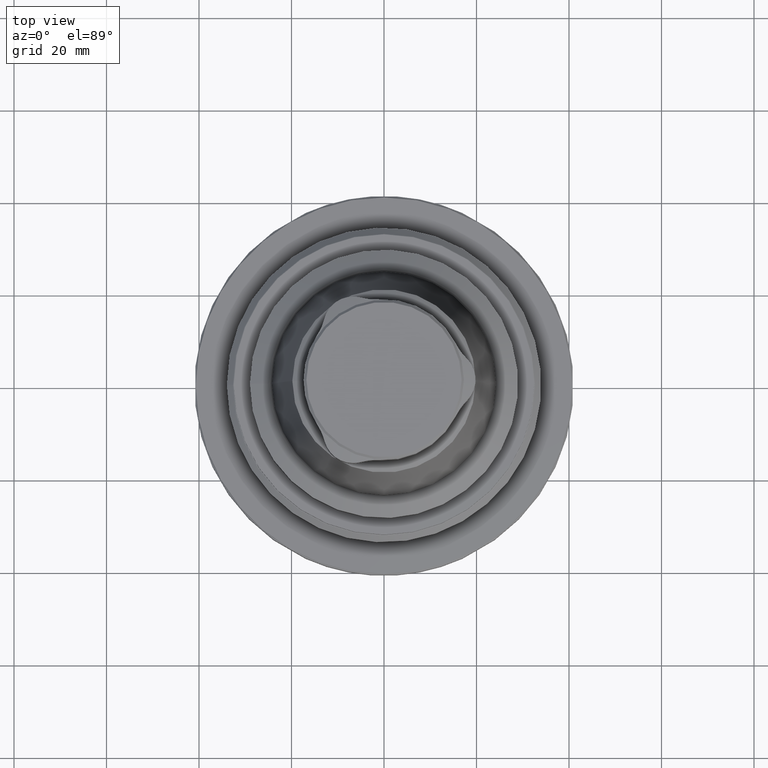
[diagram: clean part render]
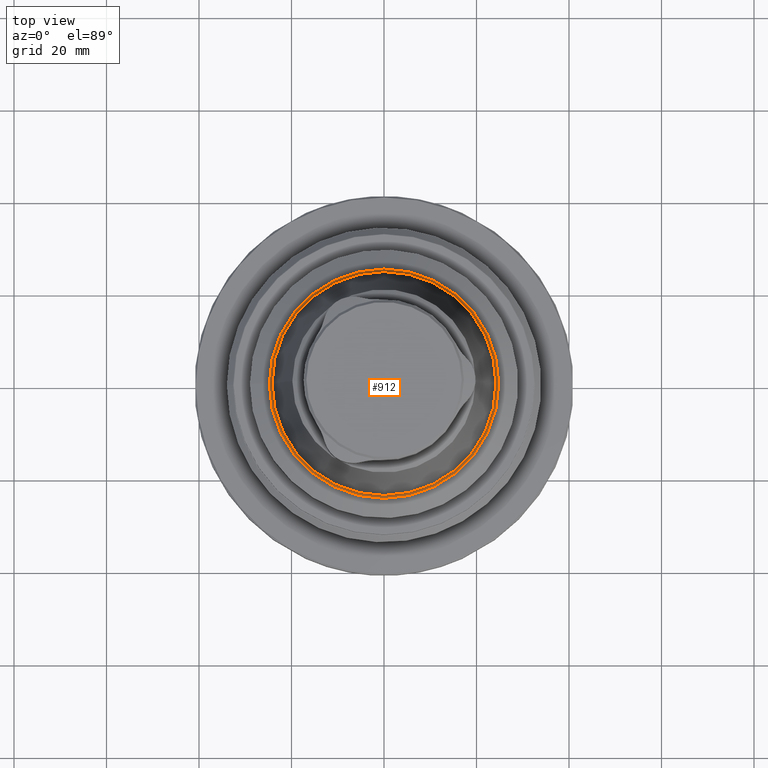
[diagram: same view with one face highlighted and labeled with its STEP entity id]
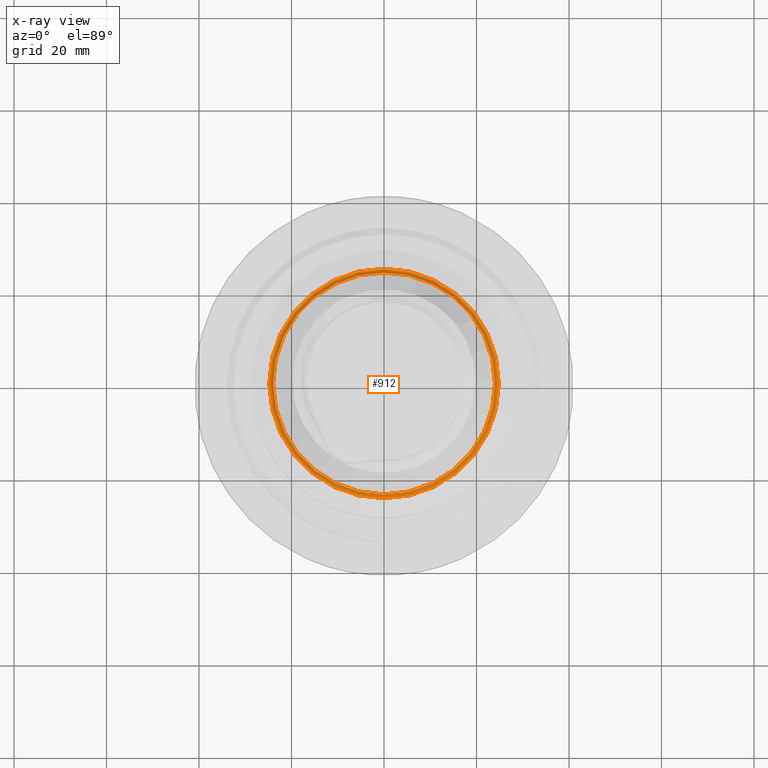
[diagram: x-ray of the same camera — body ghosted, the highlighted face saturated]
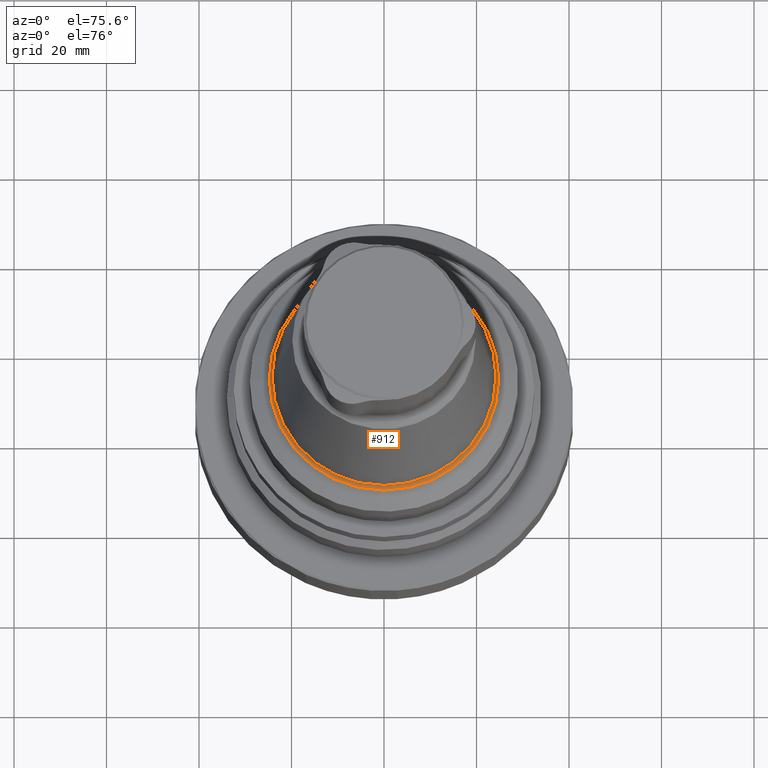
[diagram: same view with one face highlighted and labeled with its STEP entity id]
A machine part, top view. The second image highlights one B-rep face of the part: STEP entity #912.
The next image is the same camera in x-ray: the body ghosted, the highlighted face saturated — about 0% of this face is hidden behind the body in this view.
A second angle (auxiliary view) of the same face is appended — the face is thin or edge-on in the first view.
In plain terms, the highlighted toroidal blend (fillet) surface has major radius 24.8 mm and minor (blend) radius 0.8 mm.
Its self-contained STEP definition (entity closure, byte-faithful):
#21=TOROIDAL_SURFACE('',#1009,24.8,0.8);
#131=CIRCLE('',#1008,24.0121537975902);
#132=CIRCLE('',#1010,24.8);
#276=ORIENTED_EDGE('',*,*,#468,.T.);
#277=ORIENTED_EDGE('',*,*,#469,.F.);
#468=EDGE_CURVE('',#576,#576,#131,.T.);
#469=EDGE_CURVE('',#577,#577,#132,.T.);
#576=VERTEX_POINT('',#1603);
#577=VERTEX_POINT('',#1606);
#706=EDGE_LOOP('',(#276));
#707=EDGE_LOOP('',(#277));
#801=FACE_BOUND('',#706,.T.);
#802=FACE_BOUND('',#707,.T.);
#912=ADVANCED_FACE('',(#801,#802),#21,.F.);
#1008=AXIS2_PLACEMENT_3D('',#1602,#1184,#1185);
#1009=AXIS2_PLACEMENT_3D('',#1604,#1186,#1187);
#1010=AXIS2_PLACEMENT_3D('',#1605,#1188,#1189);
#1184=DIRECTION('',(1.22461692971323E-16,-7.49836836562635E-33,-1.));
#1185=DIRECTION('',(-1.,6.12303176911189E-17,-1.22461692971323E-16));
#1186=DIRECTION('',(1.22461692971323E-16,-7.49836836562635E-33,-1.));
#1187=DIRECTION('',(-1.,6.12303176911189E-17,-1.22461692971323E-16));
#1188=DIRECTION('',(1.22461692971323E-16,-7.49836836562635E-33,-1.));
#1189=DIRECTION('',(-1.,6.12303176911189E-17,-1.22461692971323E-16));
#1602=CARTESIAN_POINT('',(5.96453016039818E-15,-3.65210076599441E-31,24.2956915959715));
#1603=CARTESIAN_POINT('',(-24.0121537975902,1.47027180547446E-15,24.2956915959715));
#1604=CARTESIAN_POINT('',(6.93889390390723E-15,-4.24870678161208E-31,24.1567730538379));
#1605=CARTESIAN_POINT('',(6.07951171463002E-15,-3.72250433693675E-31,23.3567730538379));
#1606=CARTESIAN_POINT('',(-24.8,1.51851187873975E-15,23.3567730538379));